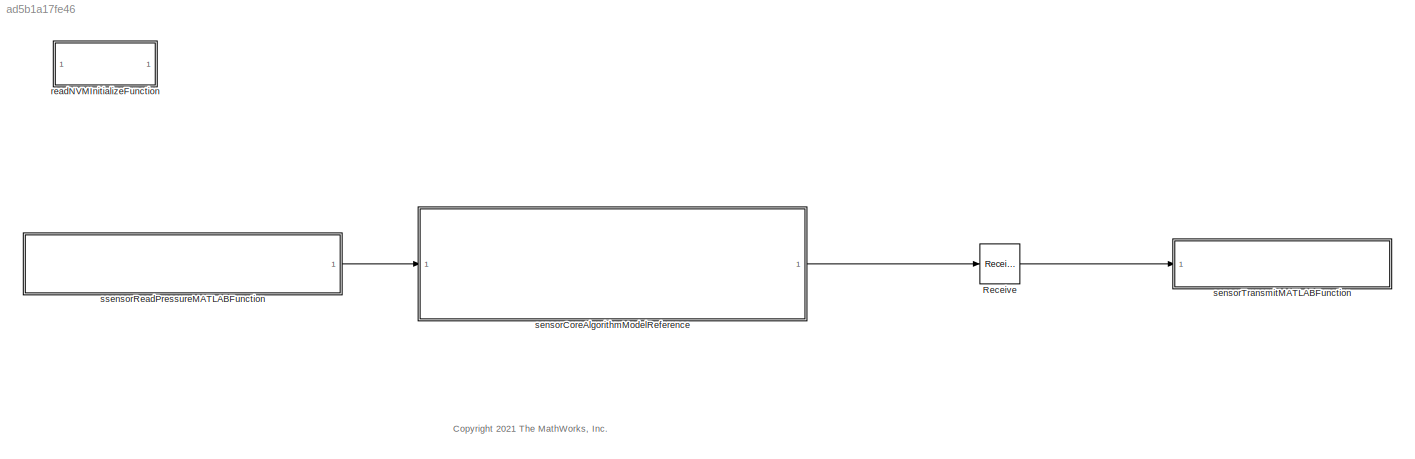
MODEL slx_ad5b1a17fe46
KIND model
WORKSPACE source: mxarray member
WORKSPACE SENSOR_PARAMETERS_NVM_ADDRESS_AS_UINT32: Simulink.Parameter (value not decoded)
BLOCK [Receive] Receive
  InputPortMap = u0
  InputPortMessageModes = m
  OutputPortMap = o1
  Ports = [1, 1]
  QueueLength = 1
  QueueOverwriting = on
  QueueType = LIFO
  UseInternalQueue = off
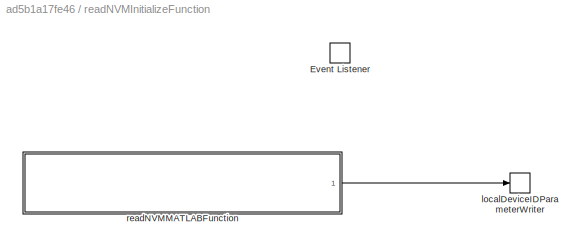
BLOCK [SubSystem] readNVMInitializeFunction
  Ports = []
  RequestExecContextInheritance = off
  TreatAsAtomicUnit = on
BLOCK [EventListener] readNVMInitializeFunction/Event Listener
  DisableCoverage = on
  EventName = reset
BLOCK [ParameterWriter] readNVMInitializeFunction/localDeviceIDParameterWriter
  ParameterInternalName = LOCAL_DEVICE_ID
  ParameterName = LOCAL_DEVICE_ID
  ParameterOwnerBlock = ../../sensorCoreAlgorithmModelReference
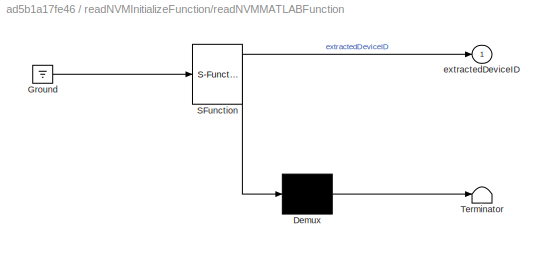
BLOCK [SubSystem] readNVMInitializeFunction/readNVMMATLABFunction
  ErrorFcn = Stateflow.Translate.translate
  PermitHierarchicalResolution = ExplicitOnly
  Ports = [0, 1]
  RequestExecContextInheritance = off
  SFBlockType = MATLAB Function
  TreatAsAtomicUnit = on
BLOCK [Demux] readNVMInitializeFunction/readNVMMATLABFunction/ Demux 
  Outputs = 1
  Ports = [1, 1]
BLOCK [Ground] readNVMInitializeFunction/readNVMMATLABFunction/ Ground 
BLOCK [S-Function] readNVMInitializeFunction/readNVMMATLABFunction/ SFunction 
  EnableBusSupport = off
  FunctionName = sf_sfun
  Parameters = SENSOR_PARAMETERS_NVM_ADDRESS_AS_UINT32
  PortCounts = [1 2]
  Ports = [1, 2]
  SFcnIsStateOwnerBlock = off
  SFunctionDeploymentMode = off
  Tag = Stateflow S-Function 2
BLOCK [Terminator] readNVMInitializeFunction/readNVMMATLABFunction/ Terminator 
BLOCK [Outport] readNVMInitializeFunction/readNVMMATLABFunction/extractedDeviceID
BLOCK [ModelReference] sensorCoreAlgorithmModelReference
  ModelNameDialog = sensorCoreAlgorithm
  ModelReferenceVersion = 4.0
  OutputPortMessageModes = m
  Ports = [1, 1]
  UsingDefaultArgumentValue = 0
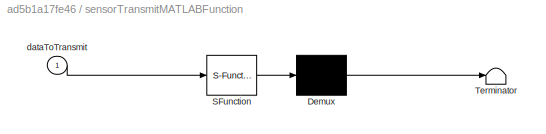
BLOCK [SubSystem] sensorTransmitMATLABFunction
  ErrorFcn = Stateflow.Translate.translate
  PermitHierarchicalResolution = ExplicitOnly
  Ports = [1]
  RequestExecContextInheritance = off
  SFBlockType = MATLAB Function
  TreatAsAtomicUnit = on
BLOCK [Demux] sensorTransmitMATLABFunction/ Demux 
  Outputs = 1
  Ports = [1, 1]
BLOCK [S-Function] sensorTransmitMATLABFunction/ SFunction 
  EnableBusSupport = off
  FunctionName = sf_sfun
  PortCounts = [1 1]
  Ports = [1, 1]
  SFcnIsStateOwnerBlock = off
  SFunctionDeploymentMode = off
  Tag = Stateflow S-Function 3
BLOCK [Terminator] sensorTransmitMATLABFunction/ Terminator 
BLOCK [Inport] sensorTransmitMATLABFunction/dataToTransmit
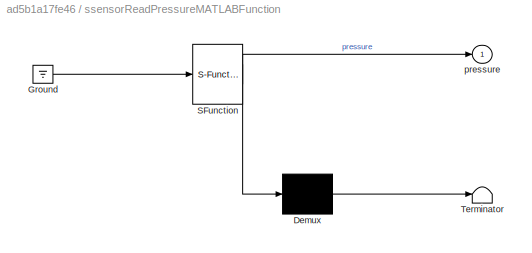
BLOCK [SubSystem] ssensorReadPressureMATLABFunction
  ErrorFcn = Stateflow.Translate.translate
  PermitHierarchicalResolution = ExplicitOnly
  Ports = [0, 1]
  RequestExecContextInheritance = off
  SFBlockType = MATLAB Function
  TreatAsAtomicUnit = on
BLOCK [Demux] ssensorReadPressureMATLABFunction/ Demux 
  Outputs = 1
  Ports = [1, 1]
BLOCK [Ground] ssensorReadPressureMATLABFunction/ Ground 
BLOCK [S-Function] ssensorReadPressureMATLABFunction/ SFunction 
  EnableBusSupport = off
  FunctionName = sf_sfun
  PortCounts = [1 2]
  Ports = [1, 2]
  SFcnIsStateOwnerBlock = off
  SFunctionDeploymentMode = off
  Tag = Stateflow S-Function 1
BLOCK [Terminator] ssensorReadPressureMATLABFunction/ Terminator 
BLOCK [Outport] ssensorReadPressureMATLABFunction/pressure
ANNOTATION (root): <copyright redacted>
LINE Receive:1 -> sensorTransmitMATLABFunction:1
LINE readNVMInitializeFunction/readNVMMATLABFunction:1 -> readNVMInitializeFunction/localDeviceIDParameterWriter:1
LINE sensorCoreAlgorithmModelReference:1 -> Receive:1
LINE ssensorReadPressureMATLABFunction:1 -> sensorCoreAlgorithmModelReference:1
CHART readNVMInitializeFunction/readNVMMATLABFunction states=1 transitions=1
  STATE_LABEL 'eML_blk_kernel()'
  STATE_LABEL "SCRIPT:\nfunction extractedDeviceID = readNVMMATLABFunction(SENSOR_PARAMETERS_NVM_ADDRESS_AS_UINT32) \n\ncoder.extrinsic( 'warning' );\n\ndefaultDeviceID = deviceIDBusTypeDefaultConstructor( );\n\nif( coder.target( 'Rtw' ) )\n    \n    extractedDeviceID = ...\n        SensorTargetSpecificCodeExternalDependency.sensorReadNVMMatlabWrapper( SENSOR_PARAMETERS_NVM_ADDRESS_AS_UINT32, defaultDeviceID );\n    \nelse\n...<+125ch>"
CHART sensorTransmitMATLABFunction states=1 transitions=1
  STATE_LABEL 'eML_blk_kernel()'
  STATE_LABEL "SCRIPT:\nfunction sensorTransmitMATLABFunction( dataToTransmit )\n\ncoder.extrinsic( 'warning' );\n\nif( coder.target( 'Rtw' ) )\n    \n    SensorTargetSpecificCodeExternalDependency.sensorTransmitDataMATLABWrapper( dataToTransmit );\n    \nelse\n    warning( 'This block in only for code-generation.' );\nend\n\nreturn;\n\nend\n"
CHART ssensorReadPressureMATLABFunction states=1 transitions=1
  STATE_LABEL 'eML_blk_kernel()'
  STATE_LABEL "SCRIPT:\nfunction pressure   = sensorReadPressureFunction( ) \n\ncoder.extrinsic( 'warning' );\n\npressure = double( 0 );\n\nif( coder.target( 'Rtw' ) )\n\npressure = ...\n    SensorTargetSpecificCodeExternalDependency.sensorReadPressureMATLABWrapper( );\n\nelse\n    warning( 'This block is code-generation-only.' );\nend\n\nreturn;\n\nend"
CHART  states=0 transitions=0
CHART  states=0 transitions=0
CHART  states=0 transitions=0
